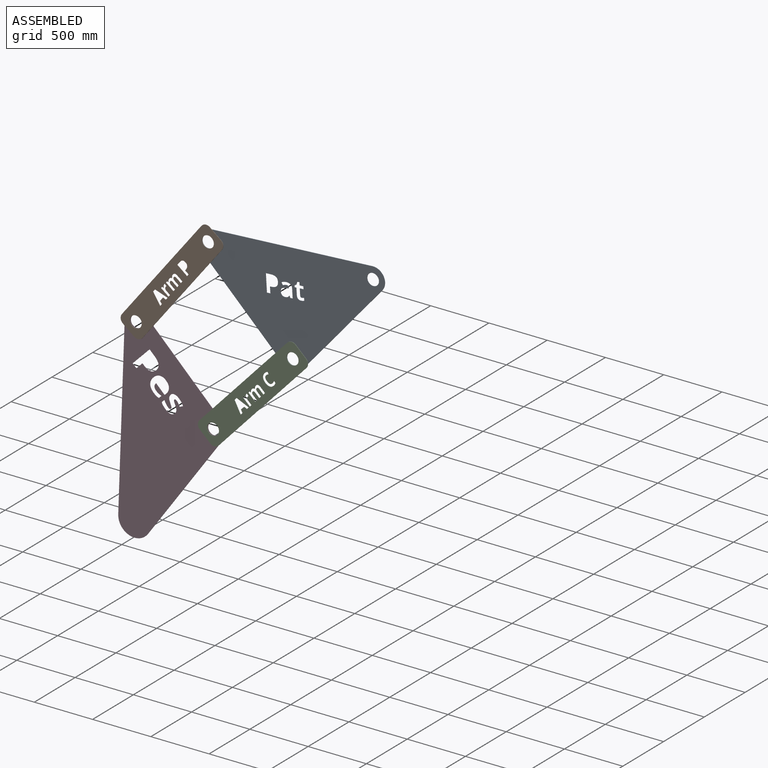
[diagram: assembled view]
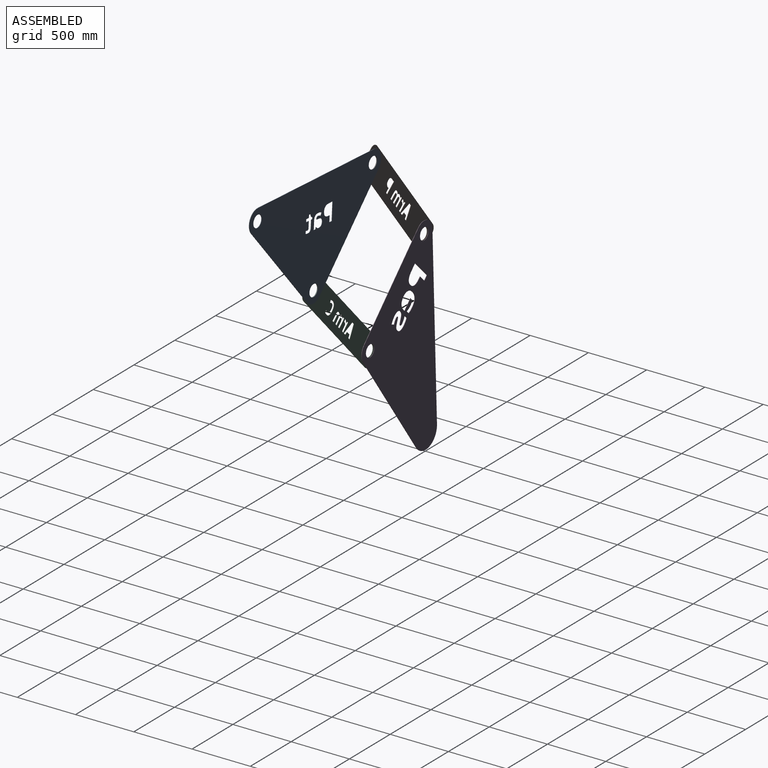
[diagram: assembled view, second angle]
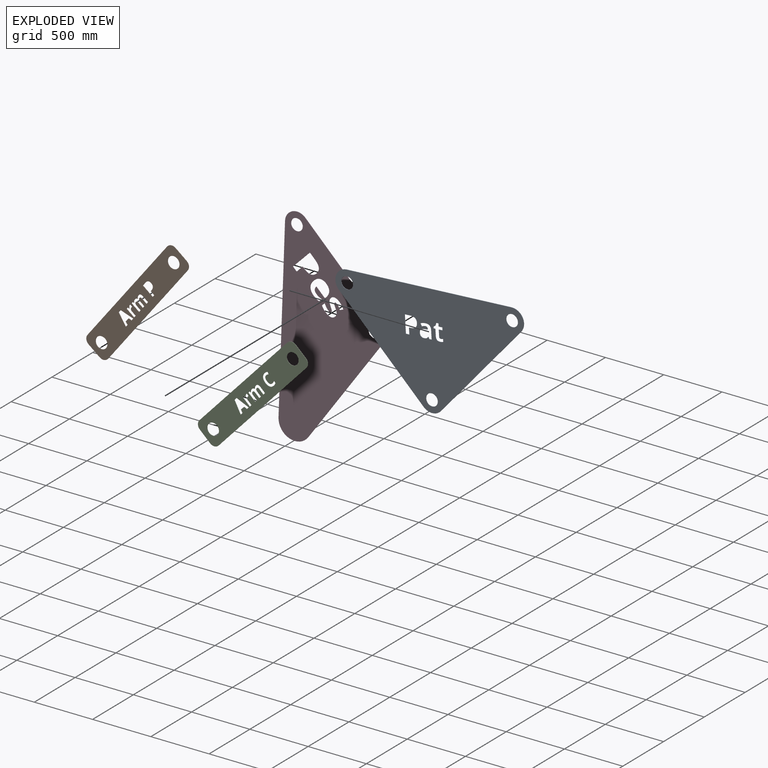
[diagram: exploded view]
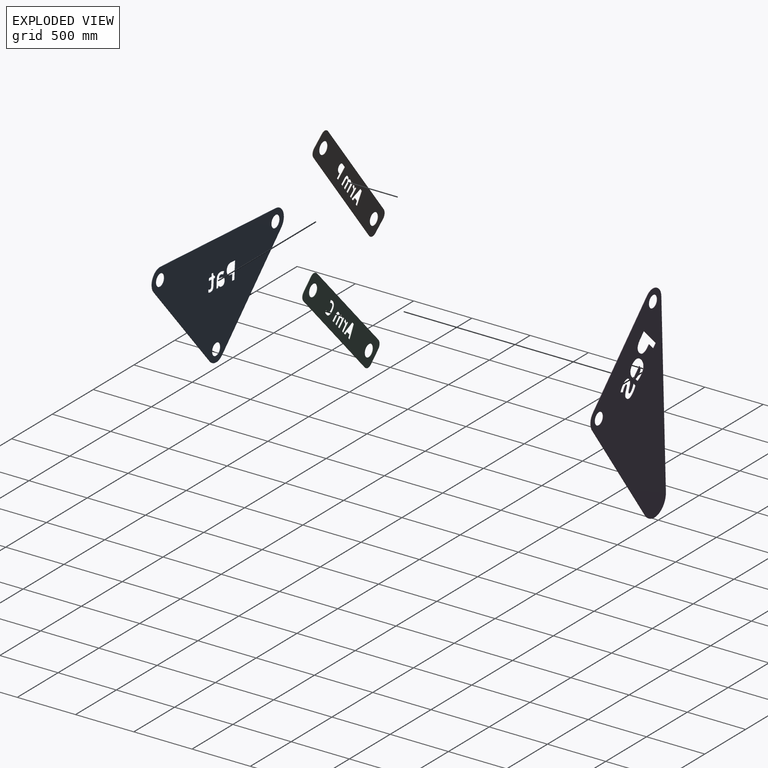
[diagram: exploded view, second angle]
ASSEMBLY  parts=4 mates=4
PART A: 56 faces, bbox 1620.5x3.2x959.1 mm
  f0: extruded ~9.81x3.73mm, area 34.4mm2, adj f1,f53,f54,f55
  f1: extruded ~9.88x3.18mm, area 33.7mm2, adj f0,f2,f54,f55
  f2: extruded ~19.62x3.57mm, area 63.6mm2, adj f1,f3,f54,f55
  f3: plane 23.19x3.18mm, normal (-1,0,0), area 73.6mm2, adj f2,f4,f54,f55
  f4: extruded ~28.62x5.23mm, area 93.1mm2, adj f3,f5,f54,f55
  f5: extruded ~27.25x9.47mm, area 94.3mm2, adj f4,f6,f54,f55
  f6: extruded ~28.37x8.54mm, area 96.2mm2, adj f5,f7,f54,f55
  f7: plane 55.08x3.18mm, normal (1,0,0), area 174.9mm2, adj f6,f8,f54,f55
  f8: plane 14.91x3.18mm, normal (0,0,1), area 47.4mm2, adj f7,f9,f54,f55
  f9: plane 13.18x3.18mm, normal (1,0,0), area 41.9mm2, adj f8,f10,f54,f55
  f10: plane 17.17x10.43mm, normal (0.52,0,-0.85), area 63.8mm2, adj f9,f11,f54,f55
  f11: plane 24.14x8.99mm, normal (0.94,0,-0.35), area 81.8mm2, adj f10,f12,f54,f55
  f12: plane 19.92x3.18mm, normal (0,0,-1), area 63.2mm2, adj f11,f13,f54,f55
  f13: plane 24.33x3.18mm, normal (-1,0,0), area 77.3mm2, adj f12,f14,f54,f55
  f14: plane 31.99x3.18mm, normal (0,0,-1), area 101.6mm2, adj f13,f15,f54,f55
  f15: plane 23.42x3.18mm, normal (-1,0,0), area 74.4mm2, adj f14,f16,f54,f55
  f16: plane 31.99x3.18mm, normal (0,0,1), area 101.6mm2, adj f15,f53,f54,f55
  f17: plane 76.14x3.18mm, normal (-1,0,0), area 241.8mm2, adj f18,f47,f54,f55
  f18: plane 21.75x3.18mm, normal (0,0,1), area 69.1mm2, adj f17,f19,f54,f55
  f19: plane 15.54x6.05mm, normal (0.93,0,0.36), area 52.9mm2, adj f18,f20,f54,f55
  f20: plane 3.18x0.82mm, normal (0,0,1), area 2.6mm2, adj f19,f21,f54,f55
  f21: extruded ~16.19x13.75mm, area 68.1mm2, adj f20,f22,f54,f55
  f22: extruded ~21.72x3.84mm, area 70.6mm2, adj f21,f23,f54,f55
  f23: extruded ~25.9x9.42mm, area 89.9mm2, adj f22,f24,f54,f55
  f24: extruded ~26.79x9.45mm, area 92.7mm2, adj f23,f25,f54,f55
  f25: extruded ~26.82x12.72mm, area 98.4mm2, adj f24,f26,f54,f55
  f26: extruded ~38.37x9.55mm, area 127.1mm2, adj f25,f27,f54,f55
  f27: plane 19.85x3.18mm, normal (0.03,0,-1), area 63.1mm2, adj f26,f28,f54,f55
  f28: plane 5x3.18mm, normal (1,0,0), area 15.9mm2, adj f27,f29,f54,f55
  f29: extruded ~17.79x17.37mm, area 90.6mm2, adj f28,f30,f54,f55
  f30: extruded ~32.22x8.28mm, area 106.4mm2, adj f29,f31,f54,f55
  f31: plane 21.06x10.3mm, normal (0.9,0,0.44), area 74.4mm2, adj f30,f32,f54,f55
  f32: extruded ~43.73x10.34mm, area 144.1mm2, adj f31,f33,f54,f55
  f33: extruded ~35.26x10.03mm, area 118.7mm2, adj f32,f47,f54,f55
  f34: extruded ~41.36x11.71mm, area 139.2mm2, adj f35,f48,f54,f55
  f35: extruded ~34.9x14.15mm, area 123.7mm2, adj f34,f36,f54,f55
  f36: extruded ~36.91x15.08mm, area 130.9mm2, adj f35,f37,f54,f55
  f37: extruded ~42.88x12.77mm, area 145mm2, adj f36,f38,f54,f55
  f38: plane 13.57x3.18mm, normal (0,0,1), area 43.1mm2, adj f37,f39,f54,f55
  f39: plane 53.15x3.18mm, normal (-1,0,0), area 168.8mm2, adj f38,f40,f54,f55
  f40: plane 31.69x3.18mm, normal (0,0,1), area 100.6mm2, adj f39,f41,f54,f55
  f41: plane 149.44x3.18mm, normal (1,0,0), area 474.5mm2, adj f40,f48,f54,f55
  f42: plane 1417.32x3.18mm, normal (0,0,1), area 4500mm2, adj f43,f49,f54,f55
  f43: cylinder r=101.6mm len=169.7mm, axis (0,1,0), area 743.6mm2, adj f42,f44,f54,f55
  f44: plane 755.91x682.66mm, normal (-0.74,0,-0.67), area 3233.9mm2, adj f43,f45,f54,f55
  f45: cylinder r=101.6mm len=148.26mm, axis (0,1,0), area 527.7mm2, adj f44,f46,f54,f55
  f46: plane 755.91x734.66mm, normal (0.72,0,-0.7), area 3346.8mm2, adj f45,f49,f54,f55
  f47: extruded ~30.47x12.27mm, area 108mm2, adj f17,f33,f54,f55
  f48: plane 47.72x3.18mm, normal (0,0,-1), area 151.5mm2, adj f34,f41,f54,f55
  f49: cylinder r=101.6mm len=172.41mm, axis (0,1,0), area 755.5mm2, adj f42,f46,f54,f55
  f50: cylinder r=50.8mm len=101.6mm, axis (0,1,0), area 1013.4mm2, adj f54,f55
  f51: cylinder r=50.8mm len=101.6mm, axis (0,1,0), area 1013.4mm2, adj f54,f55
  f52: cylinder r=50.8mm len=101.6mm, axis (0,1,0), area 1013.4mm2, adj f54,f55
  f53: plane 55.08x3.18mm, normal (-1,0,0), area 174.9mm2, adj f0,f16,f54,f55
  f54: plane 1620.52x959.11mm, normal (0,-1,0), area 872819.6mm2, adj f0,f1,f2,f3,f4,f5,f6,f7
  f55: plane 1620.52x959.11mm, normal (0,1,0), area 872819.6mm2, adj f0,f1,f2,f3,f4,f5,f6,f7
PART B: 70 faces, bbox 1204x3.2x224.1 mm
  f0: extruded ~29.78x8.43mm, area 100.2mm2, adj f1,f67,f68,f69
  f1: extruded ~25.13x10.19mm, area 89.1mm2, adj f0,f2,f68,f69
  f2: extruded ~26.58x10.86mm, area 94.3mm2, adj f1,f3,f68,f69
  f3: extruded ~30.87x9.2mm, area 104.4mm2, adj f2,f4,f68,f69
  f4: plane 9.77x3.18mm, normal (0,0,1), area 31mm2, adj f3,f5,f68,f69
  f5: plane 38.27x3.18mm, normal (-1,0,0), area 121.5mm2, adj f4,f6,f68,f69
  f6: plane 22.82x3.18mm, normal (0,0,1), area 72.4mm2, adj f5,f7,f68,f69
  f7: plane 107.59x3.18mm, normal (1,0,0), area 341.6mm2, adj f6,f67,f68,f69
  f8: cylinder r=50.8mm len=50.8mm, axis (0,1,0), area 253.4mm2, adj f9,f61,f68,f69
  f9: plane 1102.36x3.18mm, normal (0,0,-1), area 3500mm2, adj f8,f10,f68,f69
  f10: cylinder r=50.8mm len=50.8mm, axis (0,1,0), area 253.4mm2, adj f9,f11,f68,f69
  f11: plane 122.52x3.18mm, normal (1,0,0), area 389mm2, adj f10,f12,f68,f69
  f12: cylinder r=50.8mm len=50.8mm, axis (0,1,0), area 253.4mm2, adj f11,f13,f68,f69
  f13: plane 1102.36x3.18mm, normal (0,0,1), area 3500mm2, adj f12,f14,f68,f69
  f14: cylinder r=50.8mm len=50.8mm, axis (0,1,0), area 253.4mm2, adj f13,f61,f68,f69
  f15: plane 108.04x38.13mm, normal (-0.94,0,-0.33), area 363.8mm2, adj f16,f62,f68,f69
  f16: plane 24.59x3.18mm, normal (0,0,1), area 78.1mm2, adj f15,f17,f68,f69
  f17: plane 25.62x7.79mm, normal (0.96,0,0.29), area 85mm2, adj f16,f18,f68,f69
  f18: plane 39.23x3.18mm, normal (0,0,1), area 124.6mm2, adj f17,f19,f68,f69
  f19: plane 25.62x7.79mm, normal (-0.96,0,0.29), area 85mm2, adj f18,f20,f68,f69
  f20: plane 24.59x3.18mm, normal (0,0,1), area 78.1mm2, adj f19,f21,f68,f69
  f21: plane 108.04x37.98mm, normal (0.94,0,-0.33), area 363.6mm2, adj f20,f62,f68,f69
  f22: extruded ~11.15x10.35mm, area 48.8mm2, adj f23,f63,f68,f69
  f23: extruded ~14.16x4.23mm, area 47.6mm2, adj f22,f24,f68,f69
  f24: extruded ~7.58x3.18mm, area 24.2mm2, adj f23,f25,f68,f69
  f25: plane 21.03x3.18mm, normal (-1,0,0.08), area 67mm2, adj f24,f26,f68,f69
  f26: extruded ~6.62x3.18mm, area 21.2mm2, adj f25,f27,f68,f69
  f27: extruded ~16.74x5.52mm, area 57.3mm2, adj f26,f28,f68,f69
  f28: extruded ~15.46x6.01mm, area 54.3mm2, adj f27,f29,f68,f69
  f29: plane 41.87x3.18mm, normal (-1,0,0), area 132.9mm2, adj f28,f30,f68,f69
  f30: plane 22.44x3.18mm, normal (0,0,1), area 71.3mm2, adj f29,f31,f68,f69
  f31: plane 82.28x3.18mm, normal (1,0,0), area 261.2mm2, adj f30,f32,f68,f69
  f32: plane 17x3.18mm, normal (0,0,-1), area 54mm2, adj f31,f33,f68,f69
  f33: plane 13.85x3.32mm, normal (-0.97,0,-0.23), area 45.2mm2, adj f32,f63,f68,f69
  f34: extruded ~18.7x4.09mm, area 61.6mm2, adj f35,f64,f68,f69
  f35: plane 41.28x3.18mm, normal (-1,0,0), area 131.1mm2, adj f34,f36,f68,f69
  f36: plane 22.44x3.18mm, normal (0,0,1), area 71.3mm2, adj f35,f37,f68,f69
  f37: plane 48.06x3.18mm, normal (1,0,0), area 152.6mm2, adj f36,f38,f68,f69
  f38: extruded ~13.35x3.18mm, area 44mm2, adj f37,f39,f68,f69
  f39: extruded ~9.38x4.45mm, area 34.5mm2, adj f38,f40,f68,f69
  f40: extruded ~12.52x6.33mm, area 46.7mm2, adj f39,f41,f68,f69
  f41: extruded ~20.82x3.9mm, area 68mm2, adj f40,f42,f68,f69
  f42: plane 38.71x3.18mm, normal (-1,0,0), area 122.9mm2, adj f41,f43,f68,f69
  f43: plane 22.44x3.18mm, normal (0,0,1), area 71.3mm2, adj f42,f44,f68,f69
  f44: plane 82.28x3.18mm, normal (1,0,0), area 261.2mm2, adj f43,f45,f68,f69
  f45: plane 17.14x3.18mm, normal (0,0,-1), area 54.4mm2, adj f44,f46,f68,f69
  f46: plane 10.53x3.18mm, normal (-0.96,0,-0.28), area 34.8mm2, adj f45,f47,f68,f69
  f47: plane 3.18x1.25mm, normal (0,0,-1), area 4mm2, adj f46,f48,f68,f69
  f48: extruded ~9.57x8.87mm, area 42mm2, adj f47,f49,f68,f69
  f49: extruded ~14.35x3.19mm, area 47.1mm2, adj f48,f50,f68,f69
  f50: extruded ~25.03x12.06mm, area 93mm2, adj f49,f51,f68,f69
  f51: plane 3.18x1.98mm, normal (0,0,-1), area 6.3mm2, adj f50,f52,f68,f69
  f52: extruded ~9.75x8.9mm, area 42.6mm2, adj f51,f53,f68,f69
  f53: extruded ~14.53x3.18mm, area 47.6mm2, adj f52,f54,f68,f69
  f54: extruded ~21.16x7.17mm, area 72.8mm2, adj f53,f55,f68,f69
  f55: extruded ~23x7.17mm, area 78.5mm2, adj f54,f56,f68,f69
  f56: plane 53.64x3.18mm, normal (-1,0,0), area 170.3mm2, adj f55,f57,f68,f69
  f57: plane 22.51x3.18mm, normal (0,0,1), area 71.5mm2, adj f56,f58,f68,f69
  f58: plane 48.06x3.18mm, normal (1,0,0), area 152.6mm2, adj f57,f59,f68,f69
  f59: extruded ~13.35x3.18mm, area 44mm2, adj f58,f60,f68,f69
  f60: extruded ~9.38x4.45mm, area 34.5mm2, adj f59,f64,f68,f69
  f61: plane 122.52x3.18mm, normal (-1,0,0), area 389mm2, adj f8,f14,f68,f69
  f62: plane 27.88x3.18mm, normal (0,0,-1), area 88.5mm2, adj f15,f21,f68,f69
  f63: plane 3.18x1.08mm, normal (0,0,-1), area 3.4mm2, adj f22,f33,f68,f69
  f64: extruded ~12.33x5.89mm, area 45.3mm2, adj f34,f60,f68,f69
  f65: cylinder r=50.8mm len=101.6mm, axis (0,1,0), area 1013.4mm2, adj f68,f69
  f66: cylinder r=50.8mm len=101.6mm, axis (0,1,0), area 1013.4mm2, adj f68,f69
  f67: plane 34.36x3.18mm, normal (0,0,-1), area 109.1mm2, adj f0,f7,f68,f69
  f68: plane 1203.96x224.12mm, normal (0,-1,0), area 231097.9mm2, adj f0,f1,f2,f3,f4,f5,f6,f7
  f69: plane 1203.96x224.12mm, normal (0,1,0), area 231097.9mm2, adj f0,f1,f2,f3,f4,f5,f6,f7
PART C: 76 faces, bbox 1201.4x3.2x224.1 mm
  f0: extruded ~12.08x4.97mm, area 41.5mm2, adj f1,f73,f74,f75
  f1: extruded ~11.91x3.18mm, area 38.6mm2, adj f0,f2,f74,f75
  f2: extruded ~19.82x9.62mm, area 72.8mm2, adj f1,f3,f74,f75
  f3: extruded ~26.8x7.02mm, area 89.4mm2, adj f2,f4,f74,f75
  f4: extruded ~35.76x26.84mm, area 162mm2, adj f3,f5,f74,f75
  f5: extruded ~27.26x5.62mm, area 88.8mm2, adj f4,f6,f74,f75
  f6: plane 19x3.18mm, normal (-1,0,0), area 60.3mm2, adj f5,f7,f74,f75
  f7: extruded ~29.39x5.5mm, area 95.6mm2, adj f6,f8,f74,f75
  f8: extruded ~35.69x14.16mm, area 125.9mm2, adj f7,f9,f74,f75
  f9: extruded ~40.63x12.36mm, area 137.8mm2, adj f8,f10,f74,f75
  f10: extruded ~29.23x6.07mm, area 95.6mm2, adj f9,f11,f74,f75
  f11: extruded ~19.22x17.45mm, area 83.7mm2, adj f10,f12,f74,f75
  f12: extruded ~26.65x6.68mm, area 88.3mm2, adj f11,f13,f74,f75
  f13: extruded ~31.29x7.51mm, area 103mm2, adj f12,f73,f74,f75
  f14: extruded ~18.58x4.06mm, area 61.2mm2, adj f15,f67,f74,f75
  f15: plane 41.02x3.18mm, normal (-1,0,0), area 130.2mm2, adj f14,f16,f74,f75
  f16: plane 22.3x3.18mm, normal (0,0,1), area 70.8mm2, adj f15,f17,f74,f75
  f17: plane 47.76x3.18mm, normal (1,0,0), area 151.6mm2, adj f16,f18,f74,f75
  f18: extruded ~13.27x3.18mm, area 43.8mm2, adj f17,f19,f74,f75
  f19: extruded ~9.33x4.42mm, area 34.2mm2, adj f18,f20,f74,f75
  f20: extruded ~12.44x6.3mm, area 46.4mm2, adj f19,f21,f74,f75
  f21: extruded ~20.69x3.87mm, area 67.6mm2, adj f20,f22,f74,f75
  f22: plane 38.47x3.18mm, normal (-1,0,0), area 122.2mm2, adj f21,f23,f74,f75
  f23: plane 22.3x3.18mm, normal (0,0,1), area 70.8mm2, adj f22,f24,f74,f75
  f24: plane 81.77x3.18mm, normal (1,0,0), area 259.6mm2, adj f23,f25,f74,f75
  f25: plane 17.04x3.18mm, normal (0,0,-1), area 54.1mm2, adj f24,f26,f74,f75
  f26: plane 10.46x3.18mm, normal (-0.96,0,-0.28), area 34.5mm2, adj f25,f27,f74,f75
  f27: plane 3.18x1.24mm, normal (0,0,-1), area 3.9mm2, adj f26,f28,f74,f75
  f28: extruded ~9.51x8.81mm, area 41.7mm2, adj f27,f29,f74,f75
  f29: extruded ~14.26x3.18mm, area 46.8mm2, adj f28,f30,f74,f75
  f30: extruded ~24.88x11.98mm, area 92.4mm2, adj f29,f31,f74,f75
  f31: plane 3.18x1.97mm, normal (0,0,-1), area 6.2mm2, adj f30,f32,f74,f75
  f32: extruded ~9.69x8.85mm, area 42.3mm2, adj f31,f33,f74,f75
  f33: extruded ~14.44x3.18mm, area 47.3mm2, adj f32,f34,f74,f75
  f34: extruded ~21.03x7.13mm, area 72.4mm2, adj f33,f35,f74,f75
  f35: extruded ~22.85x7.13mm, area 78mm2, adj f34,f36,f74,f75
  f36: plane 53.31x3.18mm, normal (-1,0,0), area 169.3mm2, adj f35,f37,f74,f75
  f37: plane 22.37x3.18mm, normal (0,0,1), area 71mm2, adj f36,f38,f74,f75
  f38: plane 47.76x3.18mm, normal (1,0,0), area 151.6mm2, adj f37,f39,f74,f75
  f39: extruded ~13.27x3.18mm, area 43.8mm2, adj f38,f40,f74,f75
  f40: extruded ~9.33x4.42mm, area 34.2mm2, adj f39,f67,f74,f75
  f41: extruded ~11.08x10.29mm, area 48.5mm2, adj f42,f68,f74,f75
  f42: extruded ~14.08x4.2mm, area 47.3mm2, adj f41,f43,f74,f75
  f43: extruded ~7.54x3.18mm, area 24.1mm2, adj f42,f44,f74,f75
  f44: plane 20.9x3.18mm, normal (-1,0,0.08), area 66.6mm2, adj f43,f45,f74,f75
  f45: extruded ~6.58x3.18mm, area 21.1mm2, adj f44,f46,f74,f75
  f46: extruded ~16.64x5.49mm, area 57mm2, adj f45,f47,f74,f75
  f47: extruded ~15.36x5.97mm, area 53.9mm2, adj f46,f48,f74,f75
  f48: plane 41.61x3.18mm, normal (-1,0,0), area 132.1mm2, adj f47,f49,f74,f75
  f49: plane 22.3x3.18mm, normal (0,0,1), area 70.8mm2, adj f48,f50,f74,f75
  f50: plane 81.77x3.18mm, normal (1,0,0), area 259.6mm2, adj f49,f51,f74,f75
  f51: plane 16.9x3.18mm, normal (0,0,-1), area 53.6mm2, adj f50,f52,f74,f75
  f52: plane 13.76x3.3mm, normal (-0.97,0,-0.23), area 44.9mm2, adj f51,f68,f74,f75
  f53: plane 107.37x37.89mm, normal (-0.94,0,-0.33), area 361.5mm2, adj f54,f69,f74,f75
  f54: plane 24.43x3.18mm, normal (0,0,1), area 77.6mm2, adj f53,f55,f74,f75
  f55: plane 25.46x7.75mm, normal (0.96,0,0.29), area 84.5mm2, adj f54,f56,f74,f75
  f56: plane 38.99x3.18mm, normal (0,0,1), area 123.8mm2, adj f55,f57,f74,f75
  f57: plane 25.46x7.75mm, normal (-0.96,0,0.29), area 84.5mm2, adj f56,f58,f74,f75
  f58: plane 24.43x3.18mm, normal (0,0,1), area 77.6mm2, adj f57,f59,f74,f75
  f59: plane 107.37x37.75mm, normal (0.94,0,-0.33), area 361.3mm2, adj f58,f69,f74,f75
  f60: cylinder r=50.8mm len=50.8mm, axis (0,1,0), area 253.4mm2, adj f61,f70,f74,f75
  f61: plane 1099.82x3.18mm, normal (0,0,-1), area 3491.9mm2, adj f60,f62,f74,f75
  f62: cylinder r=50.8mm len=50.8mm, axis (0,1,0), area 253.4mm2, adj f61,f63,f74,f75
  f63: plane 122.52x3.18mm, normal (1,0,0), area 389mm2, adj f62,f64,f74,f75
  f64: cylinder r=50.8mm len=50.8mm, axis (0,1,0), area 253.4mm2, adj f63,f65,f74,f75
  f65: plane 1099.82x3.18mm, normal (0,0,1), area 3491.9mm2, adj f64,f66,f74,f75
  f66: cylinder r=50.8mm len=50.8mm, axis (0,1,0), area 253.4mm2, adj f65,f70,f74,f75
  f67: extruded ~12.25x5.85mm, area 45mm2, adj f14,f40,f74,f75
  f68: plane 3.18x1.08mm, normal (0,0,-1), area 3.4mm2, adj f41,f52,f74,f75
  f69: plane 27.71x3.18mm, normal (0,0,-1), area 88mm2, adj f53,f59,f74,f75
  f70: plane 122.52x3.18mm, normal (-1,0,0), area 389mm2, adj f60,f66,f74,f75
  f71: cylinder r=50.8mm len=101.6mm, axis (0,1,0), area 1013.4mm2, adj f74,f75
  f72: cylinder r=50.8mm len=101.6mm, axis (0,1,0), area 1013.4mm2, adj f74,f75
  f73: plane 18.44x7.3mm, normal (-0.93,0,0.37), area 63mm2, adj f0,f13,f74,f75
  f74: plane 1201.42x224.12mm, normal (0,-1,0), area 232234.4mm2, adj f0,f1,f2,f3,f4,f5,f6,f7
  f75: plane 1201.42x224.12mm, normal (0,1,0), area 232234.4mm2, adj f0,f1,f2,f3,f4,f5,f6,f7
PART D: 60 faces, bbox 1312.6x3.2x1351.2 mm
  f0: extruded ~15.08x12.82mm, area 63.4mm2, adj f1,f57,f58,f59
  f1: extruded ~20.34x4.15mm, area 66.5mm2, adj f0,f2,f58,f59
  f2: extruded ~37.33x17.01mm, area 135.4mm2, adj f1,f3,f58,f59
  f3: extruded ~50.9x12.82mm, area 169.5mm2, adj f2,f4,f58,f59
  f4: extruded ~29.61x3.18mm, area 94.4mm2, adj f3,f5,f58,f59
  f5: extruded ~22.91x6.92mm, area 76.1mm2, adj f4,f6,f58,f59
  f6: plane 35.85x3.18mm, normal (1,0,0), area 113.8mm2, adj f5,f7,f58,f59
  f7: extruded ~27.24x9.54mm, area 91.8mm2, adj f6,f8,f58,f59
  f8: extruded ~26.69x3.85mm, area 85.8mm2, adj f7,f9,f58,f59
  f9: extruded ~23.64x13.66mm, area 97.5mm2, adj f8,f10,f58,f59
  f10: extruded ~8.36x3.18mm, area 29.1mm2, adj f9,f11,f58,f59
  f11: extruded ~10.82x7.27mm, area 41.5mm2, adj f10,f12,f58,f59
  f12: extruded ~20.47x9.43mm, area 71.6mm2, adj f11,f13,f58,f59
  f13: extruded ~26.99x14.26mm, area 97.1mm2, adj f12,f14,f58,f59
  f14: extruded ~15.03x12.53mm, area 62.8mm2, adj f13,f15,f58,f59
  f15: extruded ~20.82x3.89mm, area 67.8mm2, adj f14,f16,f58,f59
  f16: extruded ~32.82x16.42mm, area 121.5mm2, adj f15,f17,f58,f59
  f17: extruded ~46.62x11.59mm, area 154.9mm2, adj f16,f18,f58,f59
  f18: extruded ~55.93x12.53mm, area 183.4mm2, adj f17,f19,f58,f59
  f19: plane 31.29x13.07mm, normal (-0.92,0,0.39), area 107.7mm2, adj f18,f20,f58,f59
  f20: extruded ~22.36x8.38mm, area 75.9mm2, adj f19,f21,f58,f59
  f21: extruded ~21.23x3.28mm, area 68.5mm2, adj f20,f22,f58,f59
  f22: extruded ~19.22x10.39mm, area 77.6mm2, adj f21,f23,f58,f59
  f23: extruded ~10.11x6.19mm, area 39.3mm2, adj f22,f24,f58,f59
  f24: extruded ~27.15x12.66mm, area 95.2mm2, adj f23,f57,f58,f59
  f25: extruded ~24.32x8.47mm, area 82mm2, adj f26,f52,f58,f59
  f26: extruded ~31.61x3.18mm, area 100.9mm2, adj f25,f27,f58,f59
  f27: extruded ~60.03x21.23mm, area 207.5mm2, adj f26,f28,f58,f59
  f28: extruded ~60.08x21.64mm, area 208.4mm2, adj f27,f29,f58,f59
  f29: extruded ~61.83x20mm, area 211.2mm2, adj f28,f30,f58,f59
  f30: extruded ~55.3x21.84mm, area 194.6mm2, adj f29,f31,f58,f59
  f31: extruded ~52.49x19.2mm, area 182.5mm2, adj f30,f32,f58,f59
  f32: extruded ~53.09x18.79mm, area 183.5mm2, adj f31,f33,f58,f59
  f33: plane 21.09x3.18mm, normal (-1,0,0), area 67mm2, adj f32,f34,f58,f59
  f34: plane 102.62x3.18mm, normal (0,0,1), area 325.8mm2, adj f33,f35,f58,f59
  f35: extruded ~28.88x10.98mm, area 100.4mm2, adj f34,f36,f58,f59
  f36: extruded ~28.74x10.39mm, area 99.7mm2, adj f35,f37,f58,f59
  f37: extruded ~27.19x3.18mm, area 87mm2, adj f36,f38,f58,f59
  f38: extruded ~26.74x9.54mm, area 90.3mm2, adj f37,f52,f58,f59
  f39: plane 932.18x3.18mm, normal (0,0,1), area 2959.7mm2, adj f40,f53,f58,f59
  f40: cylinder r=101.6mm len=170.33mm, axis (0,1,0), area 746.4mm2, adj f39,f41,f58,f59
  f41: plane 1135.65x1043.24mm, normal (-0.74,0,-0.68), area 4896.1mm2, adj f40,f42,f58,f59
  f42: cylinder r=139.7mm len=242.58mm, axis (0,1,0), area 1134.3mm2, adj f41,f43,f58,f59
  f43: plane 1103.85x176.73mm, normal (0.99,0,0.16), area 3549.4mm2, adj f42,f53,f58,f59
  f44: extruded ~57.6x16.31mm, area 193.9mm2, adj f45,f54,f58,f59
  f45: extruded ~48.6x19.7mm, area 172.3mm2, adj f44,f46,f58,f59
  f46: extruded ~51.4x21mm, area 182.3mm2, adj f45,f47,f58,f59
  f47: extruded ~59.71x17.79mm, area 202mm2, adj f46,f48,f58,f59
  f48: plane 18.9x3.18mm, normal (0,0,1), area 60mm2, adj f47,f49,f58,f59
  f49: plane 74.02x3.18mm, normal (-1,0,0), area 235mm2, adj f48,f50,f58,f59
  f50: plane 44.14x3.18mm, normal (0,0,1), area 140.1mm2, adj f49,f51,f58,f59
  f51: plane 208.11x3.18mm, normal (1,0,0), area 660.7mm2, adj f50,f54,f58,f59
  f52: plane 33.61x3.18mm, normal (-1,0,0), area 106.7mm2, adj f25,f38,f58,f59
  f53: cylinder r=101.6mm len=100.32mm, axis (0,1,0), area 455.5mm2, adj f39,f43,f58,f59
  f54: plane 66.46x3.18mm, normal (0,0,-1), area 211mm2, adj f44,f51,f58,f59
  f55: cylinder r=50.8mm len=101.6mm, axis (0,1,0), area 1013.4mm2, adj f58,f59
  f56: cylinder r=50.8mm len=101.6mm, axis (0,1,0), area 1013.4mm2, adj f58,f59
  f57: extruded ~27.31x14.1mm, area 97.8mm2, adj f0,f24,f58,f59
  f58: plane 1351.17x1312.59mm, normal (0,-1,0), area 910581.3mm2, adj f0,f1,f2,f3,f4,f5,f6,f7
  f59: plane 1351.17x1312.59mm, normal (0,1,0), area 910581.3mm2, adj f0,f1,f2,f3,f4,f5,f6,f7
PLACE A rot(axis=(0,-1,0),3.5deg) t=(-1081.46,48.64,-1148.62)mm
PLACE B rot(axis=(0,-1,0),51.8deg) t=(-816.45,45.46,1386.63)mm
PLACE C rot(axis=(0,-1,0),46.8deg) t=(-1250.75,45.46,-514.43)mm
PLACE D rot(axis=(0,1,0),44.7deg) t=(-437.84,54.99,-2048.87)mm
MATE revolute B.f65 <-> D.f40  axis (0,1,0) through (-408.84,45.46,-350.03)mm
MATE cylindrical C.f72 <-> A.f45  axis (0,1,0) through (937.31,45.46,-277.16)mm
MATE revolute B.f66 <-> A.f43  axis (0,1,0) through (210.32,45.46,436.21)mm
MATE revolute C.f71 <-> D.f53  axis (0,1,0) through (254.32,45.46,-1005.15)mm
